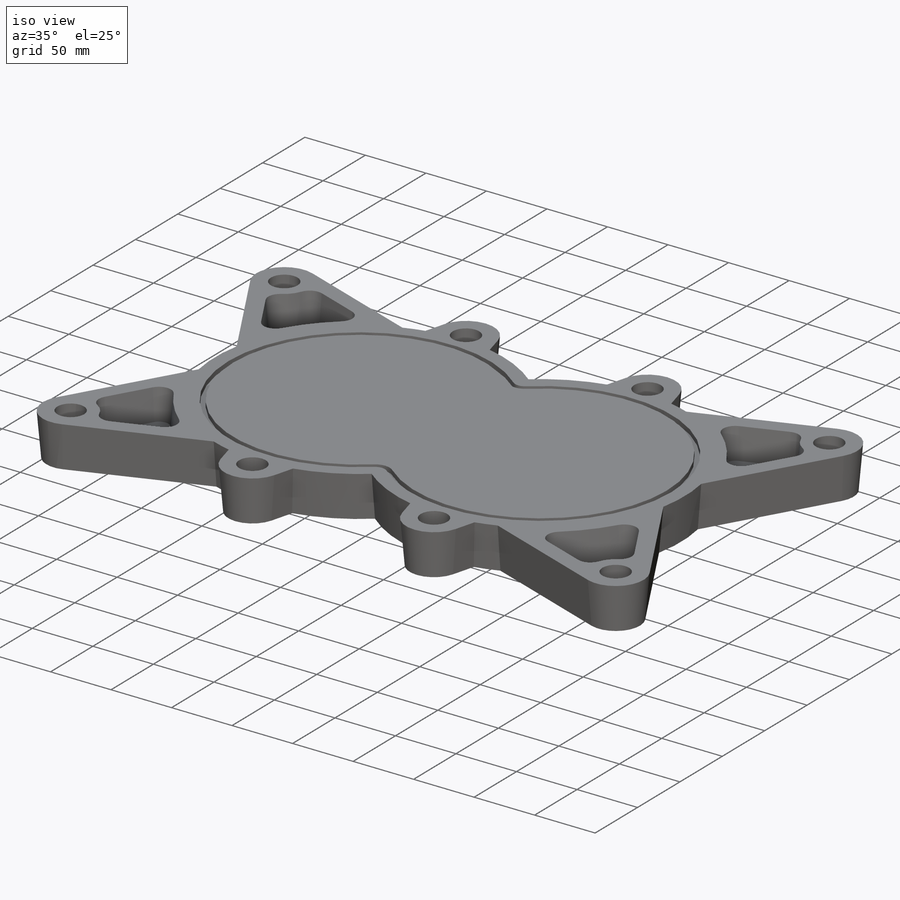
[diagram: iso view]
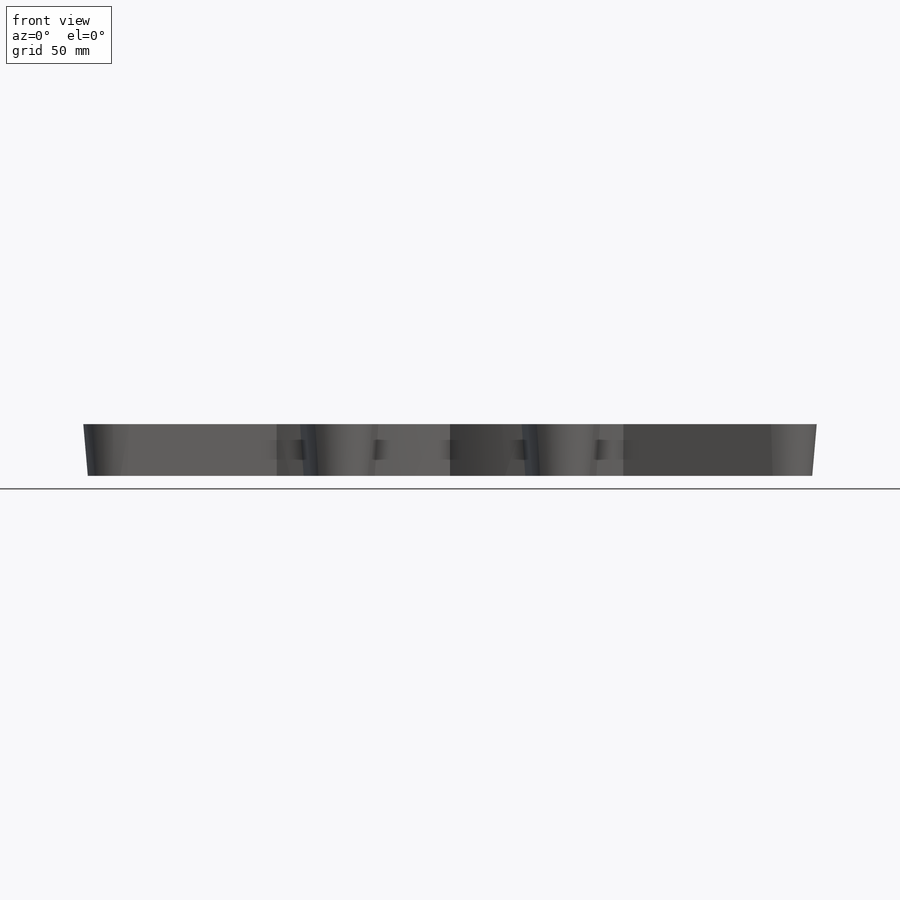
[diagram: front view]
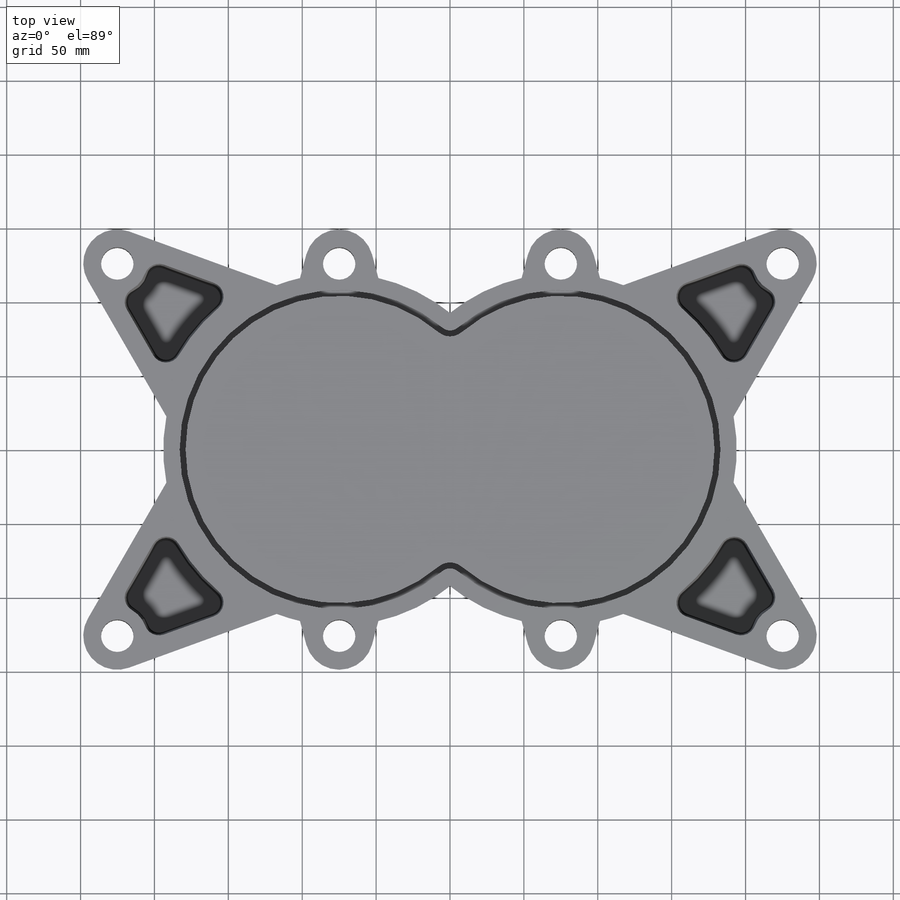
[diagram: top view]
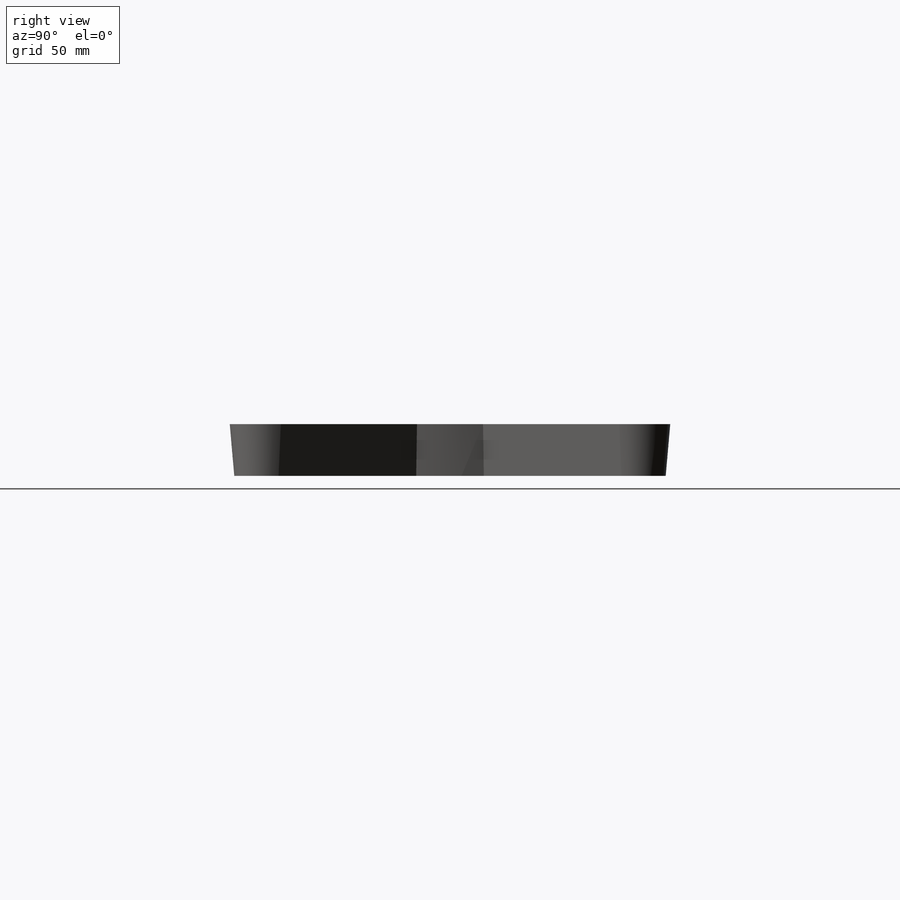
[diagram: right view]
SOLIDWORKS PART (.sldprt)
format: sldprt  version: not decoded by parser v0  size: 596,992 bytes
history: native  units: mm
features: sketch x13, material x8, hole x2, plane x1, extrude x1, cut_extrude x1, mirror x1 (+10 scaffold rows collapsed)
feature tree (37):
  scaffold x10  (default folders/planes/origin — collapsed)
  material  "Material <nicht angegeben>"
  material  "Ebene oben"
  material  "Ebene rechts"
  material  "Ebene_Langloch"
  material  "Ebene2_linkes Langloch"
  material  "Ebene3_links-mittig"
  material  "Ebene4_rechts-mittig"
  material  "Ebene5_rechtes Langloch"
  plane  "Ebene vorne"
  sketch  "Skizze Haelfte Gehauese"  dims[c1.D1=30.0mm c1.D2=192.0mm c1.D3=208.0mm c1.D4=216.0mm c1.D5=232.0mm c1.D7=45.0mm c1.D8=15.0mm c1.D9=15.0mm c1.D10=20.0mm c2.D8=15.0mm c2.D9=20.0mm c2.D11=20.0mm c2.D5=15.0mm c2.D14=~143.309607mm c2.D15=10.0mm c2.D16=20.0mm c2.D17=126.0mm c3.D15=20.0mm c3.D18=10.0mm c3.D20=10.0mm c3.D21=20.0mm c3.D3=15.0mm c3.D4=15.0mm c3.D23=10.0mm c4.D3=40.0mm c4.D25=45.0mm c4.D26=30.0mm c4.D7=192.0mm c5.D25=208.0mm c5.D26=216.0mm c5.D27=232.0mm c6.D25=104.0mm c6.D28=40.0mm c6.D29=32.0mm c6.D30=25.0mm c6.D31=32.0mm c6.D32=20.0mm c6.D33=45.0mm c6.D34=15.0mm c6.D22=~35.74579mm c7.D34=20.0mm c7.D39=116.0mm c7.D4=126.0mm c8.D4=232.0mm c8.D1=108.0mm c8.D2=96.0mm c9.D4=104.0mm c9.D5=116.0mm c9.D11=45.0mm c9.D13=30.0mm c9.D14=20.0mm c9.D15=20.0mm c9.D17=20.0mm c9.D10=126.0mm c9.D6=20.0mm c9.D7=20.0mm c9.D8=10.0mm c10.D8=10.0mm c10.D9=10.0mm c10.D22=20.0mm c10.D4=10.0mm c10.D6=150.0mm c11.D8=~38.953212mm c12.D8=15.0deg c12.D10=~16.600032mm c13.D10=15.0deg c14.D10=~16.600032mm c15.D10=15.0deg c15.D12=150.0mm c16.D12=40.0deg c16.D13=126.0mm c16.D14=~54.559284mm c16.D8=~198.030866mm c17.D8=15.0deg c17.D10=~22.379815mm c18.D10=15.0deg c18.D15=~41.093634mm c19.D15=~0.075672deg c20.D15=~41.093634mm c21.D15=~0.075672deg c22.D15=~41.093634mm c23.D15=~0.075672deg c24.D15=~79.307619mm c25.D15=~0.075672deg c26.D15=~30.132889mm c27.D15=~171.294359deg c28.D15=10.0mm c28.D17=~108.654729mm c28.D19=10.0mm c28.D20=126.0mm c28.D3=~15.319244mm c29.D3=15.0deg c30.D3=~25.815823mm c31.D3=~176.105448deg c32.D3=10.0mm c32.D22=~223.449587mm c33.D22=20.0deg c33.D23=~223.449587mm c34.D23=20.0deg c34.D24=150.0mm c34.D35=~223.449587mm c35.D35=20.0deg c35.D36=~69.112383mm c36.D36=20.0deg c36.D37=10.0mm c36.D38=~107.521901mm c37.D38=20.0deg c37.D39=~36.733849mm c38.D39=20.0deg c39.D39=10.0mm c39.D6=~93.116698mm c40.D6=20.0deg c40.D7=~223.449587mm c41.D7=20.0deg c41.D8=10.0mm c41.D9=10.0mm c41.D10=126.0mm c41.D11=~143.630626mm c42.D11=40.0deg c42.D12=150.0mm c42.D16=~18.323572mm c43.D16=15.0deg c43.D17=~31.727306mm c44.D17=15.0deg c45.D17=126.0mm c45.D18=10.0mm c45.D19=~108.711702mm c46.D19=20.0deg c46.D20=~91.436089mm c47.D20=20.0deg c47.D21=~202.753291mm c48.D21=40.0deg c48.D6=~65.839528mm c48.D3=75.0mm c48.D14=10.0mm]
  extrude  "Aufsatz-Linear austragen1"  Depth=35mm
  sketch  "Skizze Tasche"  dims[D1=10.0mm D2=20.0mm D3=10.0mm D5=126.0mm D4=10.0mm]
  cut_extrude  "Schnitt-Linear austragen1"  Depth=25mm
  hole  "Durchgangsloch für M301"  Diameter=33mm Depth=35mm
  sketch  "Skizze9"
  sketch  "Skizze8"  dims[hole-wizard template sketch: 59 standard entries collapsed; hole parameters kept: c18.Bohrerdurchmesser=33.0mm c18.Bohrungstiefe=35.0mm]
  hole  "Durchgangsloch für M202"  Diameter=22mm Depth=35mm
  sketch  "Skizze11"
  sketch  "Skizze10"  dims[hole-wizard template sketch: 59 standard entries collapsed; hole parameters kept: c18.Bohrerdurchmesser=22.0mm c18.Bohrungstiefe=35.0mm]
  mirror  "Spiegeln2"
  sketch  "Skizze13"  dims[D2=45.0mm D1=150.0mm]
  sketch  "Skizze14"  dims[D1=192.0mm D2=20.0mm]
  sketch  "Skizze17"
  sketch  "Skizze19"
  sketch  "Skizze20"
  sketch  "Skizze23"
  sketch  "Skizze25"  dims[c1.D1=8.0mm c2.D1=4.0mm c2.D5=4.0mm c2.D6=10.0mm c2.D7=5.0mm]
decode coverage: 11 of 18 modeling features carry decoded parameters
note: ~ marks probable driven/reference dimensions
note: suppression state not decoded; provenance and decode notes live in map.json
